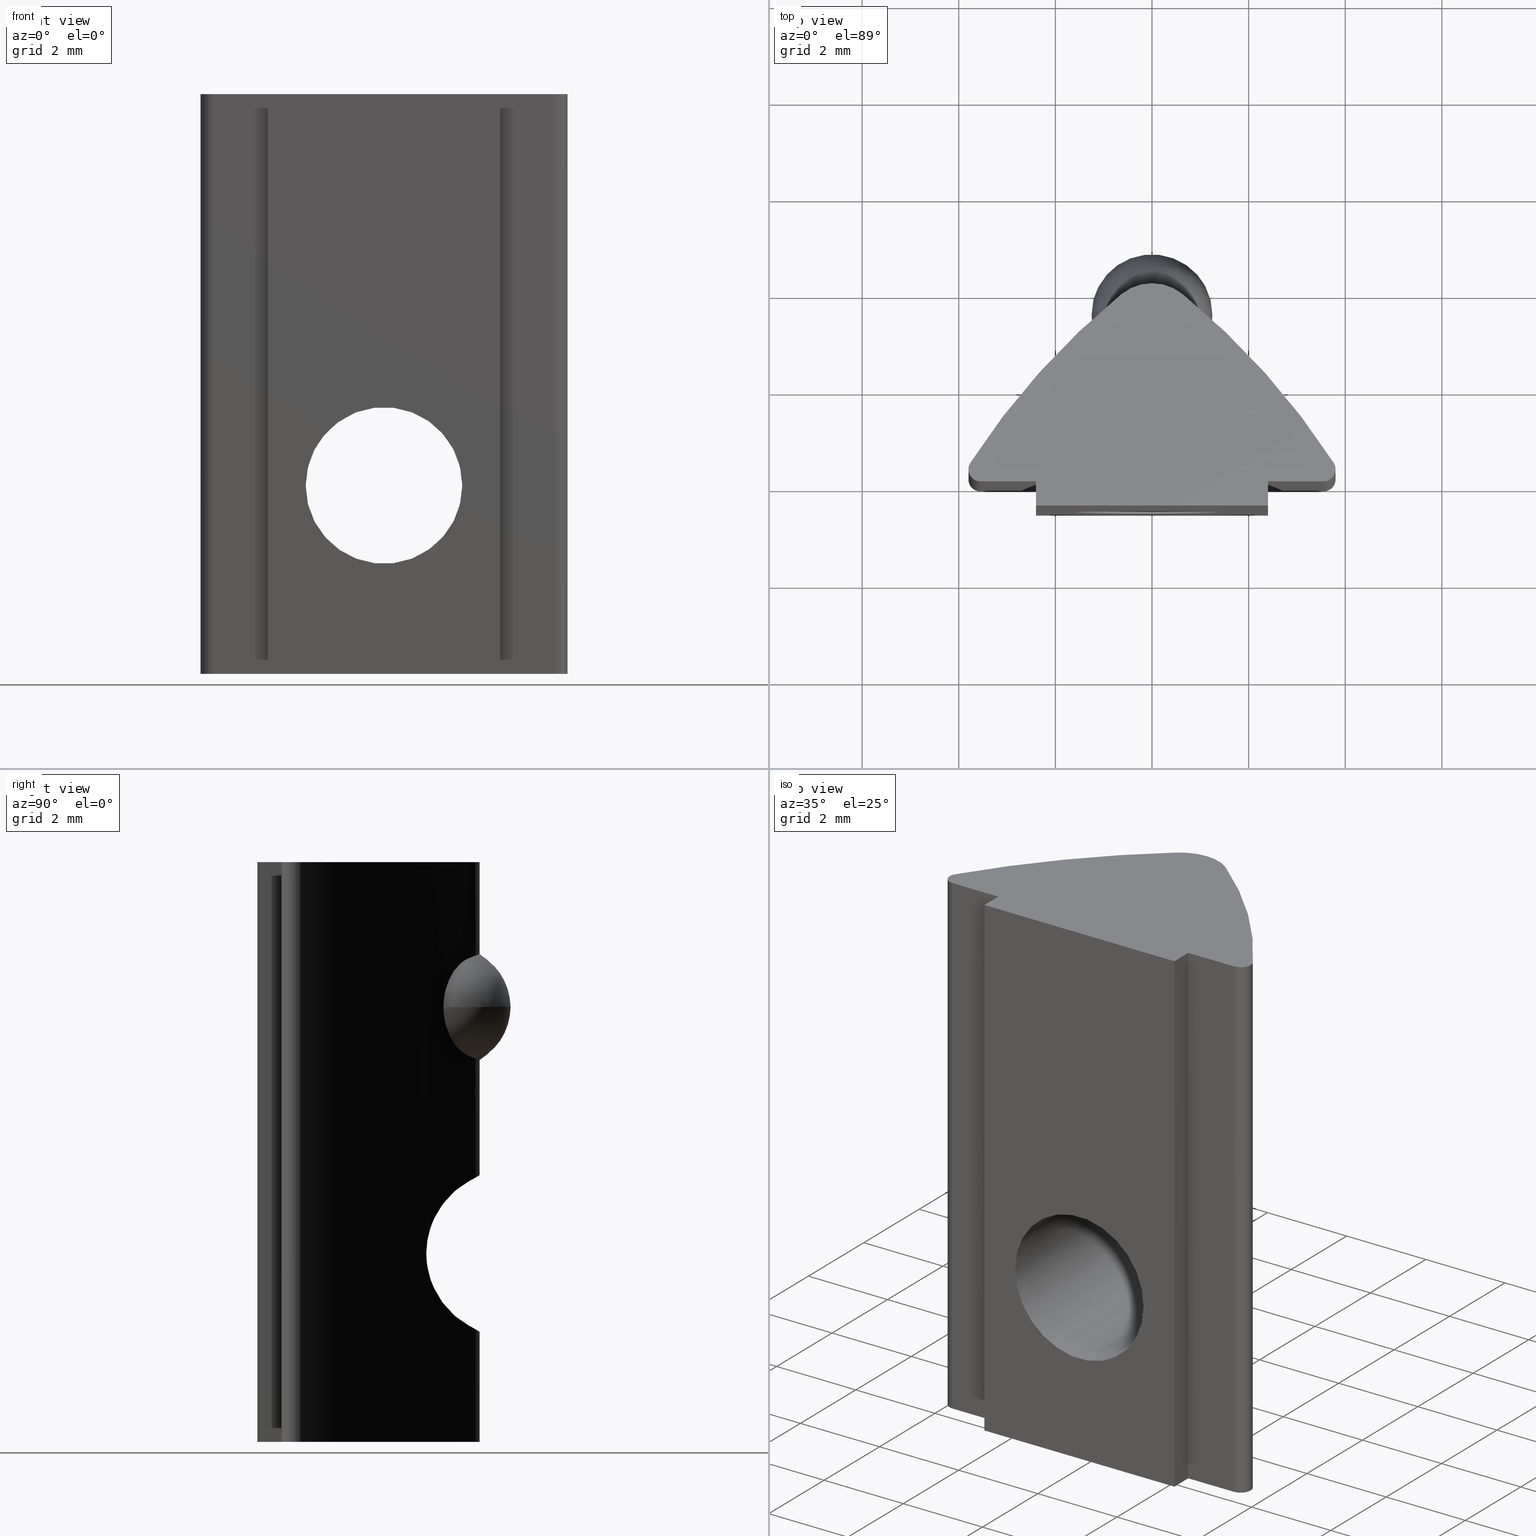
[diagram: canonical four-view strip — front | top / right | iso, engineering-drawing reading convention]
A machine part, canonical four-view strip (front | top / right | iso — engineering-drawing reading convention). The complete STEP part file that produces these views, byte-faithful:
ISO-10303-21;
HEADER;
/* Generated by software containing ST-Developer
 * from STEP Tools, Inc. (www.steptools.com) 
 */

FILE_DESCRIPTION(
/* description */ ('CURSORE ZINC. A CULLA M4 CAVA 5'),
/* implementation_level */ '2;1');

FILE_NAME(
/* name */ 
'C:\\Users\\tecnico7\\Desktop\\tavole temporanee\\CDDCU0000059.stp',
/* time_stamp */ '2022-11-16T15:43:52+01:00',
/* author */ ('tecnico7'),
/* organization */ (''),
/* preprocessor_version */ 'ST-DEVELOPER v18.1',
/* originating_system */ 'Autodesk Inventor 2022',
/* authorisation */ '');

FILE_SCHEMA (('AUTOMOTIVE_DESIGN { 1 0 10303 214 3 1 1 }'));
ENDSEC;

DATA;
#10=MECHANICAL_DESIGN_GEOMETRIC_PRESENTATION_REPRESENTATION('',(#317,#318),
#688);
#11=SHAPE_REPRESENTATION_RELATIONSHIP('SRR','None',#695,#12);
#12=ADVANCED_BREP_SHAPE_REPRESENTATION('',(#13),#687);
#13=MANIFOLD_SOLID_BREP('Solido1',#335);
#14=PLANE('',#373);
#15=PLANE('',#374);
#16=PLANE('',#375);
#17=PLANE('',#376);
#18=PLANE('',#377);
#19=PLANE('',#384);
#20=PLANE('',#385);
#21=LINE('',#545,#46);
#22=LINE('',#567,#47);
#23=LINE('',#571,#48);
#24=LINE('',#574,#49);
#25=LINE('',#577,#50);
#26=LINE('',#604,#51);
#27=LINE('',#632,#52);
#28=LINE('',#636,#53);
#29=LINE('',#639,#54);
#30=LINE('',#647,#55);
#31=LINE('',#649,#56);
#32=LINE('',#651,#57);
#33=LINE('',#652,#58);
#34=LINE('',#655,#59);
#35=LINE('',#657,#60);
#36=LINE('',#658,#61);
#37=LINE('',#661,#62);
#38=LINE('',#663,#63);
#39=LINE('',#664,#64);
#40=LINE('',#667,#65);
#41=LINE('',#669,#66);
#42=LINE('',#670,#67);
#43=LINE('',#673,#68);
#44=LINE('',#675,#69);
#45=LINE('',#676,#70);
#46=VECTOR('',#394,10.);
#47=VECTOR('',#395,10.);
#48=VECTOR('',#398,10.);
#49=VECTOR('',#401,10.);
#50=VECTOR('',#404,10.);
#51=VECTOR('',#407,1.621);
#52=VECTOR('',#412,10.);
#53=VECTOR('',#415,10.);
#54=VECTOR('',#418,10.);
#55=VECTOR('',#429,10.);
#56=VECTOR('',#430,10.);
#57=VECTOR('',#431,10.);
#58=VECTOR('',#432,10.);
#59=VECTOR('',#435,10.);
#60=VECTOR('',#436,10.);
#61=VECTOR('',#437,10.);
#62=VECTOR('',#440,10.);
#63=VECTOR('',#441,10.);
#64=VECTOR('',#442,10.);
#65=VECTOR('',#445,10.);
#66=VECTOR('',#446,10.);
#67=VECTOR('',#447,10.);
#68=VECTOR('',#450,10.);
#69=VECTOR('',#451,10.);
#70=VECTOR('',#452,10.);
#71=CYLINDRICAL_SURFACE('',#360,15.);
#72=CYLINDRICAL_SURFACE('',#363,1.);
#73=CYLINDRICAL_SURFACE('',#364,1.621);
#74=CYLINDRICAL_SURFACE('',#366,15.);
#75=CYLINDRICAL_SURFACE('',#369,1.);
#76=CYLINDRICAL_SURFACE('',#371,1.);
#77=CYLINDRICAL_SURFACE('',#378,0.25);
#78=CYLINDRICAL_SURFACE('',#381,0.25);
#79=FACE_BOUND('',#109,.T.);
#80=FACE_BOUND('',#119,.T.);
#81=B_SPLINE_CURVE_WITH_KNOTS('',3,(#476,#477,#478,#479,#480,#481,#482,
#483,#484,#485,#486,#487,#488,#489,#490,#491,#492,#493),.UNSPECIFIED.,.F.,
 .F.,(4,2,2,2,2,2,2,2,4),(0.182968456243765,0.210851468543244,0.243239566367713,
0.279251537174953,0.315263507982192,0.351275478789432,0.387287449596671,
0.41967554742114,0.447558559720619),.UNSPECIFIED.);
#82=B_SPLINE_CURVE_WITH_KNOTS('',3,(#495,#496,#497,#498,#499,#500,#501,
#502,#503,#504,#505,#506,#507,#508),.UNSPECIFIED.,.F.,.F.,(4,2,2,2,2,2,
4),(0.177323095739884,0.193497467225048,0.218225435560753,0.242953403896458,
0.267681372232164,0.292409340567869,0.308583712053033),.UNSPECIFIED.);
#83=B_SPLINE_CURVE_WITH_KNOTS('',3,(#510,#511,#512,#513,#514,#515,#516,
#517,#518,#519,#520,#521,#522,#523,#524,#525,#526,#527,#528),
 .UNSPECIFIED.,.F.,.F.,(4,2,2,2,3,2,2,2,4),(-0.132295051738427,-0.104412039438947,
-0.0720239416144781,-0.0360119708072391,0.,0.036011970807239,0.0720239416144781,
0.104412039438947,0.132295051738427),.UNSPECIFIED.);
#84=B_SPLINE_CURVE_WITH_KNOTS('',3,(#529,#530,#531,#532,#533,#534,#535,
#536,#537,#538,#539,#540,#541,#542),.UNSPECIFIED.,.F.,.F.,(4,2,2,2,2,2,
4),(0.6632299035328,0.679404275017964,0.704132243353669,0.728860211689375,
0.75358818002508,0.778316148360785,0.794490519845949),.UNSPECIFIED.);
#85=B_SPLINE_CURVE_WITH_KNOTS('',3,(#547,#548,#549,#550,#551,#552,#553,
#554,#555,#556,#557,#558,#559,#560,#561,#562,#563,#564,#565),
 .UNSPECIFIED.,.F.,.F.,(4,2,2,2,3,2,2,2,4),(-0.204897158190466,-0.202354565834305,
-0.122452070148037,-0.0612260350740186,0.,0.0612260350740184,0.122452070148037,
0.202354565834305,0.204897158190465),.UNSPECIFIED.);
#86=B_SPLINE_CURVE_WITH_KNOTS('',3,(#579,#580,#581,#582,#583,#584),
 .UNSPECIFIED.,.F.,.F.,(4,2,4),(0.0887988994654548,0.116987272487438,0.155790089731869),
 .UNSPECIFIED.);
#87=B_SPLINE_CURVE_WITH_KNOTS('',3,(#585,#586,#587,#588,#589,#590),
 .UNSPECIFIED.,.F.,.F.,(4,2,4),(0.155790089731869,0.1945929069763,0.222781279998283),
 .UNSPECIFIED.);
#88=B_SPLINE_CURVE_WITH_KNOTS('',3,(#593,#594,#595,#596,#597,#598,#599,
#600,#601,#602),.UNSPECIFIED.,.F.,.F.,(4,2,2,2,4),(0.550486779478098,0.611712814552116,
0.672938849626135,0.752841345312403,0.755383937668563),.UNSPECIFIED.);
#89=B_SPLINE_CURVE_WITH_KNOTS('',3,(#607,#608,#609,#610,#611,#612,#613,
#614,#615,#616),.UNSPECIFIED.,.F.,.F.,(4,2,2,2,4),(0.345589621287633,0.348132213643793,
0.428034709330061,0.48926074440408,0.550486779478098),.UNSPECIFIED.);
#90=B_SPLINE_CURVE_WITH_KNOTS('',3,(#618,#619,#620,#621,#622,#623),
 .UNSPECIFIED.,.F.,.F.,(4,2,4),(0.467370269195606,0.506173086440038,0.53436145946202),
 .UNSPECIFIED.);
#91=B_SPLINE_CURVE_WITH_KNOTS('',3,(#624,#625,#626,#627,#628,#629),
 .UNSPECIFIED.,.F.,.F.,(4,2,4),(0.400379078929193,0.428567451951175,0.467370269195606),
 .UNSPECIFIED.);
#92=FACE_OUTER_BOUND('',#108,.T.);
#93=FACE_OUTER_BOUND('',#110,.T.);
#94=FACE_OUTER_BOUND('',#111,.T.);
#95=FACE_OUTER_BOUND('',#112,.T.);
#96=FACE_OUTER_BOUND('',#113,.T.);
#97=FACE_OUTER_BOUND('',#114,.T.);
#98=FACE_OUTER_BOUND('',#115,.T.);
#99=FACE_OUTER_BOUND('',#116,.T.);
#100=FACE_OUTER_BOUND('',#117,.T.);
#101=FACE_OUTER_BOUND('',#118,.T.);
#102=FACE_OUTER_BOUND('',#120,.T.);
#103=FACE_OUTER_BOUND('',#121,.T.);
#104=FACE_OUTER_BOUND('',#122,.T.);
#105=FACE_OUTER_BOUND('',#123,.T.);
#106=FACE_OUTER_BOUND('',#124,.T.);
#107=FACE_OUTER_BOUND('',#125,.T.);
#108=EDGE_LOOP('',(#220,#221));
#109=EDGE_LOOP('',(#222,#223,#224,#225));
#110=EDGE_LOOP('',(#226,#227,#228,#229,#230,#231,#232,#233));
#111=EDGE_LOOP('',(#234,#235,#236,#237,#238));
#112=EDGE_LOOP('',(#239,#240,#241,#242,#243,#244,#245,#246,#247,#248));
#113=EDGE_LOOP('',(#249,#250,#251,#252,#253,#254,#255,#256,#257));
#114=EDGE_LOOP('',(#258,#259,#260,#261));
#115=EDGE_LOOP('',(#262,#263,#264,#265,#266));
#116=EDGE_LOOP('',(#267,#268,#269,#270));
#117=EDGE_LOOP('',(#271,#272,#273,#274));
#118=EDGE_LOOP('',(#275,#276,#277,#278));
#119=EDGE_LOOP('',(#279));
#120=EDGE_LOOP('',(#280,#281,#282,#283));
#121=EDGE_LOOP('',(#284,#285,#286,#287));
#122=EDGE_LOOP('',(#288,#289,#290,#291));
#123=EDGE_LOOP('',(#292,#293,#294,#295));
#124=EDGE_LOOP('',(#296,#297,#298,#299,#300,#301,#302,#303,#304,#305));
#125=EDGE_LOOP('',(#306,#307,#308,#309,#310,#311,#312,#313,#314,#315));
#126=CIRCLE('',#359,1.25);
#127=CIRCLE('',#361,15.);
#128=CIRCLE('',#362,15.);
#129=CIRCLE('',#365,1.621);
#130=CIRCLE('',#367,15.);
#131=CIRCLE('',#368,15.);
#132=CIRCLE('',#370,1.);
#133=CIRCLE('',#372,1.);
#134=CIRCLE('',#379,0.25);
#135=CIRCLE('',#380,0.25);
#136=CIRCLE('',#382,0.25);
#137=CIRCLE('',#383,0.25);
#138=VERTEX_POINT('',#471);
#139=VERTEX_POINT('',#472);
#140=VERTEX_POINT('',#474);
#141=VERTEX_POINT('',#475);
#142=VERTEX_POINT('',#494);
#143=VERTEX_POINT('',#509);
#144=VERTEX_POINT('',#544);
#145=VERTEX_POINT('',#546);
#146=VERTEX_POINT('',#566);
#147=VERTEX_POINT('',#568);
#148=VERTEX_POINT('',#570);
#149=VERTEX_POINT('',#572);
#150=VERTEX_POINT('',#576);
#151=VERTEX_POINT('',#578);
#152=VERTEX_POINT('',#592);
#153=VERTEX_POINT('',#603);
#154=VERTEX_POINT('',#606);
#155=VERTEX_POINT('',#617);
#156=VERTEX_POINT('',#631);
#157=VERTEX_POINT('',#633);
#158=VERTEX_POINT('',#635);
#159=VERTEX_POINT('',#637);
#160=VERTEX_POINT('',#645);
#161=VERTEX_POINT('',#646);
#162=VERTEX_POINT('',#648);
#163=VERTEX_POINT('',#650);
#164=VERTEX_POINT('',#654);
#165=VERTEX_POINT('',#656);
#166=VERTEX_POINT('',#660);
#167=VERTEX_POINT('',#662);
#168=VERTEX_POINT('',#666);
#169=VERTEX_POINT('',#668);
#170=VERTEX_POINT('',#672);
#171=VERTEX_POINT('',#674);
#172=EDGE_CURVE('',#138,#139,#126,.T.);
#173=EDGE_CURVE('',#140,#141,#81,.T.);
#174=EDGE_CURVE('',#142,#140,#82,.T.);
#175=EDGE_CURVE('',#143,#142,#83,.T.);
#176=EDGE_CURVE('',#141,#143,#84,.T.);
#177=EDGE_CURVE('',#144,#142,#21,.T.);
#178=EDGE_CURVE('',#144,#145,#85,.T.);
#179=EDGE_CURVE('',#146,#145,#22,.T.);
#180=EDGE_CURVE('',#147,#146,#127,.T.);
#181=EDGE_CURVE('',#147,#148,#23,.T.);
#182=EDGE_CURVE('',#149,#148,#128,.T.);
#183=EDGE_CURVE('',#143,#149,#24,.T.);
#184=EDGE_CURVE('',#150,#140,#25,.T.);
#185=EDGE_CURVE('',#150,#151,#86,.T.);
#186=EDGE_CURVE('',#151,#144,#87,.T.);
#187=EDGE_CURVE('',#152,#150,#88,.T.);
#188=EDGE_CURVE('',#152,#153,#26,.T.);
#189=EDGE_CURVE('',#153,#153,#129,.T.);
#190=EDGE_CURVE('',#154,#152,#89,.T.);
#191=EDGE_CURVE('',#155,#154,#90,.T.);
#192=EDGE_CURVE('',#145,#155,#91,.T.);
#193=EDGE_CURVE('',#141,#156,#27,.T.);
#194=EDGE_CURVE('',#157,#156,#130,.T.);
#195=EDGE_CURVE('',#158,#157,#28,.T.);
#196=EDGE_CURVE('',#159,#158,#131,.T.);
#197=EDGE_CURVE('',#159,#154,#29,.T.);
#198=EDGE_CURVE('',#156,#149,#132,.T.);
#199=EDGE_CURVE('',#146,#159,#133,.T.);
#200=EDGE_CURVE('',#160,#161,#30,.T.);
#201=EDGE_CURVE('',#160,#162,#31,.T.);
#202=EDGE_CURVE('',#163,#162,#32,.T.);
#203=EDGE_CURVE('',#161,#163,#33,.T.);
#204=EDGE_CURVE('',#161,#164,#34,.T.);
#205=EDGE_CURVE('',#165,#163,#35,.T.);
#206=EDGE_CURVE('',#164,#165,#36,.T.);
#207=EDGE_CURVE('',#164,#166,#37,.T.);
#208=EDGE_CURVE('',#167,#165,#38,.T.);
#209=EDGE_CURVE('',#166,#167,#39,.T.);
#210=EDGE_CURVE('',#166,#168,#40,.T.);
#211=EDGE_CURVE('',#169,#167,#41,.T.);
#212=EDGE_CURVE('',#168,#169,#42,.T.);
#213=EDGE_CURVE('',#168,#170,#43,.T.);
#214=EDGE_CURVE('',#171,#169,#44,.T.);
#215=EDGE_CURVE('',#170,#171,#45,.T.);
#216=EDGE_CURVE('',#170,#147,#134,.T.);
#217=EDGE_CURVE('',#148,#171,#135,.T.);
#218=EDGE_CURVE('',#158,#160,#136,.T.);
#219=EDGE_CURVE('',#162,#157,#137,.T.);
#220=ORIENTED_EDGE('',*,*,#172,.T.);
#221=ORIENTED_EDGE('',*,*,#172,.F.);
#222=ORIENTED_EDGE('',*,*,#173,.F.);
#223=ORIENTED_EDGE('',*,*,#174,.F.);
#224=ORIENTED_EDGE('',*,*,#175,.F.);
#225=ORIENTED_EDGE('',*,*,#176,.F.);
#226=ORIENTED_EDGE('',*,*,#175,.T.);
#227=ORIENTED_EDGE('',*,*,#177,.F.);
#228=ORIENTED_EDGE('',*,*,#178,.T.);
#229=ORIENTED_EDGE('',*,*,#179,.F.);
#230=ORIENTED_EDGE('',*,*,#180,.F.);
#231=ORIENTED_EDGE('',*,*,#181,.T.);
#232=ORIENTED_EDGE('',*,*,#182,.F.);
#233=ORIENTED_EDGE('',*,*,#183,.F.);
#234=ORIENTED_EDGE('',*,*,#174,.T.);
#235=ORIENTED_EDGE('',*,*,#184,.F.);
#236=ORIENTED_EDGE('',*,*,#185,.T.);
#237=ORIENTED_EDGE('',*,*,#186,.T.);
#238=ORIENTED_EDGE('',*,*,#177,.T.);
#239=ORIENTED_EDGE('',*,*,#186,.F.);
#240=ORIENTED_EDGE('',*,*,#185,.F.);
#241=ORIENTED_EDGE('',*,*,#187,.F.);
#242=ORIENTED_EDGE('',*,*,#188,.T.);
#243=ORIENTED_EDGE('',*,*,#189,.F.);
#244=ORIENTED_EDGE('',*,*,#188,.F.);
#245=ORIENTED_EDGE('',*,*,#190,.F.);
#246=ORIENTED_EDGE('',*,*,#191,.F.);
#247=ORIENTED_EDGE('',*,*,#192,.F.);
#248=ORIENTED_EDGE('',*,*,#178,.F.);
#249=ORIENTED_EDGE('',*,*,#173,.T.);
#250=ORIENTED_EDGE('',*,*,#193,.T.);
#251=ORIENTED_EDGE('',*,*,#194,.F.);
#252=ORIENTED_EDGE('',*,*,#195,.F.);
#253=ORIENTED_EDGE('',*,*,#196,.F.);
#254=ORIENTED_EDGE('',*,*,#197,.T.);
#255=ORIENTED_EDGE('',*,*,#190,.T.);
#256=ORIENTED_EDGE('',*,*,#187,.T.);
#257=ORIENTED_EDGE('',*,*,#184,.T.);
#258=ORIENTED_EDGE('',*,*,#176,.T.);
#259=ORIENTED_EDGE('',*,*,#183,.T.);
#260=ORIENTED_EDGE('',*,*,#198,.F.);
#261=ORIENTED_EDGE('',*,*,#193,.F.);
#262=ORIENTED_EDGE('',*,*,#192,.T.);
#263=ORIENTED_EDGE('',*,*,#191,.T.);
#264=ORIENTED_EDGE('',*,*,#197,.F.);
#265=ORIENTED_EDGE('',*,*,#199,.F.);
#266=ORIENTED_EDGE('',*,*,#179,.T.);
#267=ORIENTED_EDGE('',*,*,#200,.F.);
#268=ORIENTED_EDGE('',*,*,#201,.T.);
#269=ORIENTED_EDGE('',*,*,#202,.F.);
#270=ORIENTED_EDGE('',*,*,#203,.F.);
#271=ORIENTED_EDGE('',*,*,#204,.F.);
#272=ORIENTED_EDGE('',*,*,#203,.T.);
#273=ORIENTED_EDGE('',*,*,#205,.F.);
#274=ORIENTED_EDGE('',*,*,#206,.F.);
#275=ORIENTED_EDGE('',*,*,#207,.F.);
#276=ORIENTED_EDGE('',*,*,#206,.T.);
#277=ORIENTED_EDGE('',*,*,#208,.F.);
#278=ORIENTED_EDGE('',*,*,#209,.F.);
#279=ORIENTED_EDGE('',*,*,#189,.T.);
#280=ORIENTED_EDGE('',*,*,#210,.F.);
#281=ORIENTED_EDGE('',*,*,#209,.T.);
#282=ORIENTED_EDGE('',*,*,#211,.F.);
#283=ORIENTED_EDGE('',*,*,#212,.F.);
#284=ORIENTED_EDGE('',*,*,#213,.F.);
#285=ORIENTED_EDGE('',*,*,#212,.T.);
#286=ORIENTED_EDGE('',*,*,#214,.F.);
#287=ORIENTED_EDGE('',*,*,#215,.F.);
#288=ORIENTED_EDGE('',*,*,#216,.F.);
#289=ORIENTED_EDGE('',*,*,#215,.T.);
#290=ORIENTED_EDGE('',*,*,#217,.F.);
#291=ORIENTED_EDGE('',*,*,#181,.F.);
#292=ORIENTED_EDGE('',*,*,#218,.F.);
#293=ORIENTED_EDGE('',*,*,#195,.T.);
#294=ORIENTED_EDGE('',*,*,#219,.F.);
#295=ORIENTED_EDGE('',*,*,#201,.F.);
#296=ORIENTED_EDGE('',*,*,#218,.T.);
#297=ORIENTED_EDGE('',*,*,#200,.T.);
#298=ORIENTED_EDGE('',*,*,#204,.T.);
#299=ORIENTED_EDGE('',*,*,#207,.T.);
#300=ORIENTED_EDGE('',*,*,#210,.T.);
#301=ORIENTED_EDGE('',*,*,#213,.T.);
#302=ORIENTED_EDGE('',*,*,#216,.T.);
#303=ORIENTED_EDGE('',*,*,#180,.T.);
#304=ORIENTED_EDGE('',*,*,#199,.T.);
#305=ORIENTED_EDGE('',*,*,#196,.T.);
#306=ORIENTED_EDGE('',*,*,#219,.T.);
#307=ORIENTED_EDGE('',*,*,#194,.T.);
#308=ORIENTED_EDGE('',*,*,#198,.T.);
#309=ORIENTED_EDGE('',*,*,#182,.T.);
#310=ORIENTED_EDGE('',*,*,#217,.T.);
#311=ORIENTED_EDGE('',*,*,#214,.T.);
#312=ORIENTED_EDGE('',*,*,#211,.T.);
#313=ORIENTED_EDGE('',*,*,#208,.T.);
#314=ORIENTED_EDGE('',*,*,#205,.T.);
#315=ORIENTED_EDGE('',*,*,#202,.T.);
#316=SPHERICAL_SURFACE('',#358,1.25);
#317=STYLED_ITEM('',(#705),#319);
#318=STYLED_ITEM('',(#704),#13);
#319=ADVANCED_FACE('',(#92,#79),#316,.T.);
#320=ADVANCED_FACE('',(#93),#71,.T.);
#321=ADVANCED_FACE('',(#94),#72,.T.);
#322=ADVANCED_FACE('',(#95),#73,.F.);
#323=ADVANCED_FACE('',(#96),#74,.T.);
#324=ADVANCED_FACE('',(#97),#75,.T.);
#325=ADVANCED_FACE('',(#98),#76,.T.);
#326=ADVANCED_FACE('',(#99),#14,.T.);
#327=ADVANCED_FACE('',(#100),#15,.T.);
#328=ADVANCED_FACE('',(#101,#80),#16,.T.);
#329=ADVANCED_FACE('',(#102),#17,.T.);
#330=ADVANCED_FACE('',(#103),#18,.T.);
#331=ADVANCED_FACE('',(#104),#77,.T.);
#332=ADVANCED_FACE('',(#105),#78,.T.);
#333=ADVANCED_FACE('',(#106),#19,.F.);
#334=ADVANCED_FACE('',(#107),#20,.T.);
#335=CLOSED_SHELL('',(#319,#320,#321,#322,#323,#324,#325,#326,#327,#328,
#329,#330,#331,#332,#333,#334));
#336=DERIVED_UNIT_ELEMENT(#339,1.);
#337=DERIVED_UNIT_ELEMENT(#690,-3.);
#338=DIMENSIONAL_EXPONENTS(1.,0.,0.,0.,0.,0.,0.);
#339=(
CONVERSION_BASED_UNIT('gram',#341)
MASS_UNIT()
NAMED_UNIT(#338)
);
#340=(
MASS_UNIT()
NAMED_UNIT(*)
SI_UNIT(.KILO.,.GRAM.)
);
#341=MASS_MEASURE_WITH_UNIT(MASS_MEASURE(0.001),#340);
#342=DERIVED_UNIT((#336,#337));
#343=MEASURE_REPRESENTATION_ITEM('density measure',
POSITIVE_RATIO_MEASURE(7.87),#342);
#344=PROPERTY_DEFINITION_REPRESENTATION(#349,#346);
#345=PROPERTY_DEFINITION_REPRESENTATION(#350,#347);
#346=REPRESENTATION('material name',(#348),#687);
#347=REPRESENTATION('density',(#343),#687);
#348=DESCRIPTIVE_REPRESENTATION_ITEM('Acciaio 1 C40','Acciaio 1 C40');
#349=PROPERTY_DEFINITION('material property','material name',#697);
#350=PROPERTY_DEFINITION('material property','density of part',#697);
#351=DATE_TIME_ROLE('creation_date');
#352=APPLIED_DATE_AND_TIME_ASSIGNMENT(#353,#351,(#697));
#353=DATE_AND_TIME(#354,#355);
#354=CALENDAR_DATE(2017,18,7);
#355=LOCAL_TIME(0,0,0.,#356);
#356=COORDINATED_UNIVERSAL_TIME_OFFSET(0,0,.BEHIND.);
#357=AXIS2_PLACEMENT_3D('placement',#469,#386,#387);
#358=AXIS2_PLACEMENT_3D('',#470,#388,#389);
#359=AXIS2_PLACEMENT_3D('',#473,#390,#391);
#360=AXIS2_PLACEMENT_3D('',#543,#392,#393);
#361=AXIS2_PLACEMENT_3D('',#569,#396,#397);
#362=AXIS2_PLACEMENT_3D('',#573,#399,#400);
#363=AXIS2_PLACEMENT_3D('',#575,#402,#403);
#364=AXIS2_PLACEMENT_3D('',#591,#405,#406);
#365=AXIS2_PLACEMENT_3D('',#605,#408,#409);
#366=AXIS2_PLACEMENT_3D('',#630,#410,#411);
#367=AXIS2_PLACEMENT_3D('',#634,#413,#414);
#368=AXIS2_PLACEMENT_3D('',#638,#416,#417);
#369=AXIS2_PLACEMENT_3D('',#640,#419,#420);
#370=AXIS2_PLACEMENT_3D('',#641,#421,#422);
#371=AXIS2_PLACEMENT_3D('',#642,#423,#424);
#372=AXIS2_PLACEMENT_3D('',#643,#425,#426);
#373=AXIS2_PLACEMENT_3D('',#644,#427,#428);
#374=AXIS2_PLACEMENT_3D('',#653,#433,#434);
#375=AXIS2_PLACEMENT_3D('',#659,#438,#439);
#376=AXIS2_PLACEMENT_3D('',#665,#443,#444);
#377=AXIS2_PLACEMENT_3D('',#671,#448,#449);
#378=AXIS2_PLACEMENT_3D('',#677,#453,#454);
#379=AXIS2_PLACEMENT_3D('',#678,#455,#456);
#380=AXIS2_PLACEMENT_3D('',#679,#457,#458);
#381=AXIS2_PLACEMENT_3D('',#680,#459,#460);
#382=AXIS2_PLACEMENT_3D('',#681,#461,#462);
#383=AXIS2_PLACEMENT_3D('',#682,#463,#464);
#384=AXIS2_PLACEMENT_3D('',#683,#465,#466);
#385=AXIS2_PLACEMENT_3D('',#684,#467,#468);
#386=DIRECTION('axis',(0.,0.,1.));
#387=DIRECTION('refdir',(1.,0.,0.));
#388=DIRECTION('center_axis',(1.,0.,0.));
#389=DIRECTION('ref_axis',(0.,-1.,0.));
#390=DIRECTION('center_axis',(0.,0.,1.));
#391=DIRECTION('ref_axis',(0.,1.,0.));
#392=DIRECTION('center_axis',(0.,0.,1.));
#393=DIRECTION('ref_axis',(0.63114343940598,-0.775666138808953,0.));
#394=DIRECTION('',(0.,0.,1.));
#395=DIRECTION('',(0.,0.,1.));
#396=DIRECTION('center_axis',(0.,0.,-1.));
#397=DIRECTION('ref_axis',(0.63114343940598,-0.775666138808953,0.));
#398=DIRECTION('',(0.,0.,1.));
#399=DIRECTION('center_axis',(0.,0.,1.));
#400=DIRECTION('ref_axis',(0.63114343940598,-0.775666138808953,0.));
#401=DIRECTION('',(0.,0.,1.));
#402=DIRECTION('center_axis',(0.,0.,1.));
#403=DIRECTION('ref_axis',(-0.63114343940598,-0.775666138808953,0.));
#404=DIRECTION('',(0.,0.,1.));
#405=DIRECTION('center_axis',(0.,1.,0.));
#406=DIRECTION('ref_axis',(-1.,0.,0.));
#407=DIRECTION('',(0.,-1.,0.));
#408=DIRECTION('center_axis',(0.,1.,0.));
#409=DIRECTION('ref_axis',(-1.,0.,0.));
#410=DIRECTION('center_axis',(0.,0.,1.));
#411=DIRECTION('ref_axis',(-0.839729366215846,-0.543005148700023,0.));
#412=DIRECTION('',(0.,0.,1.));
#413=DIRECTION('center_axis',(0.,0.,1.));
#414=DIRECTION('ref_axis',(-0.839729366215846,-0.543005148700023,0.));
#415=DIRECTION('',(0.,0.,1.));
#416=DIRECTION('center_axis',(0.,0.,-1.));
#417=DIRECTION('ref_axis',(-0.839729366215846,-0.543005148700023,0.));
#418=DIRECTION('',(0.,0.,1.));
#419=DIRECTION('center_axis',(0.,0.,1.));
#420=DIRECTION('ref_axis',(-0.63114343940598,-0.775666138808953,0.));
#421=DIRECTION('center_axis',(0.,0.,1.));
#422=DIRECTION('ref_axis',(-0.63114343940598,-0.775666138808953,0.));
#423=DIRECTION('center_axis',(0.,0.,1.));
#424=DIRECTION('ref_axis',(-0.63114343940598,-0.775666138808953,0.));
#425=DIRECTION('center_axis',(0.,0.,-1.));
#426=DIRECTION('ref_axis',(-0.63114343940598,-0.775666138808953,0.));
#427=DIRECTION('center_axis',(6.69888676308604E-33,-1.,0.));
#428=DIRECTION('ref_axis',(1.,6.69888676308604E-33,0.));
#429=DIRECTION('',(-1.,-6.69888676308604E-33,0.));
#430=DIRECTION('',(0.,0.,1.));
#431=DIRECTION('',(1.,6.69888676308604E-33,0.));
#432=DIRECTION('',(0.,0.,1.));
#433=DIRECTION('center_axis',(1.,0.,0.));
#434=DIRECTION('ref_axis',(0.,1.,0.));
#435=DIRECTION('',(0.,-1.,0.));
#436=DIRECTION('',(0.,1.,0.));
#437=DIRECTION('',(0.,0.,1.));
#438=DIRECTION('center_axis',(0.,-1.,0.));
#439=DIRECTION('ref_axis',(1.,0.,0.));
#440=DIRECTION('',(-1.,0.,0.));
#441=DIRECTION('',(1.,0.,0.));
#442=DIRECTION('',(0.,0.,1.));
#443=DIRECTION('center_axis',(-1.,0.,0.));
#444=DIRECTION('ref_axis',(0.,-1.,0.));
#445=DIRECTION('',(0.,1.,0.));
#446=DIRECTION('',(0.,-1.,0.));
#447=DIRECTION('',(0.,0.,1.));
#448=DIRECTION('center_axis',(0.,-1.,0.));
#449=DIRECTION('ref_axis',(1.,0.,0.));
#450=DIRECTION('',(-1.,0.,0.));
#451=DIRECTION('',(1.,0.,0.));
#452=DIRECTION('',(0.,0.,1.));
#453=DIRECTION('center_axis',(0.,0.,1.));
#454=DIRECTION('ref_axis',(0.839729366215846,-0.543005148700022,0.));
#455=DIRECTION('center_axis',(0.,0.,-1.));
#456=DIRECTION('ref_axis',(0.839729366215846,-0.543005148700022,0.));
#457=DIRECTION('center_axis',(0.,0.,1.));
#458=DIRECTION('ref_axis',(0.839729366215846,-0.543005148700022,0.));
#459=DIRECTION('center_axis',(0.,0.,1.));
#460=DIRECTION('ref_axis',(0.,1.,0.));
#461=DIRECTION('center_axis',(0.,0.,-1.));
#462=DIRECTION('ref_axis',(0.,1.,0.));
#463=DIRECTION('center_axis',(0.,0.,1.));
#464=DIRECTION('ref_axis',(0.,1.,0.));
#465=DIRECTION('center_axis',(0.,0.,1.));
#466=DIRECTION('ref_axis',(1.,0.,0.));
#467=DIRECTION('center_axis',(0.,0.,1.));
#468=DIRECTION('ref_axis',(1.,0.,0.));
#469=CARTESIAN_POINT('',(0.,0.,0.));
#470=CARTESIAN_POINT('Origin',(0.,3.5,9.));
#471=CARTESIAN_POINT('',(1.25,3.5,9.));
#472=CARTESIAN_POINT('',(-1.25,3.5,9.));
#473=CARTESIAN_POINT('Origin',(0.,3.5,9.));
#474=CARTESIAN_POINT('',(0.631143439405981,3.87566613880895,7.98854910596354));
#475=CARTESIAN_POINT('',(0.631143439405981,3.87566613880895,10.0114508940365));
#476=CARTESIAN_POINT('Ctrl Pts',(0.631143439405981,3.87566613880895,7.98854910596354));
#477=CARTESIAN_POINT('Ctrl Pts',(0.706906064844613,3.81401966282485,8.0129285301541));
#478=CARTESIAN_POINT('Ctrl Pts',(0.779525979046031,3.75362472286554,8.05176362716048));
#479=CARTESIAN_POINT('Ctrl Pts',(0.912982315815267,3.64093699186633,8.15102680410987));
#480=CARTESIAN_POINT('Ctrl Pts',(0.989434669996827,3.57495232534953,8.23217409867822));
#481=CARTESIAN_POINT('Ctrl Pts',(1.10392184773954,3.47473870952647,8.40197993384423));
#482=CARTESIAN_POINT('Ctrl Pts',(1.15588616264958,3.42835364541138,8.51245620052577));
#483=CARTESIAN_POINT('Ctrl Pts',(1.22448257068173,3.36670895791017,8.75144234123317));
#484=CARTESIAN_POINT('Ctrl Pts',(1.24115006546628,3.3515193110433,8.8799600973092));
#485=CARTESIAN_POINT('Ctrl Pts',(1.24115006546628,3.3515193110433,9.1200399026908));
#486=CARTESIAN_POINT('Ctrl Pts',(1.22448257068173,3.36670895791017,9.24855765876683));
#487=CARTESIAN_POINT('Ctrl Pts',(1.15588616264958,3.42835364541138,9.48754379947423));
#488=CARTESIAN_POINT('Ctrl Pts',(1.10392184773954,3.47473870952647,9.59802006615577));
#489=CARTESIAN_POINT('Ctrl Pts',(0.989434669996827,3.57495232534953,9.76782590132178));
#490=CARTESIAN_POINT('Ctrl Pts',(0.912982315815267,3.64093699186633,9.84897319589013));
#491=CARTESIAN_POINT('Ctrl Pts',(0.779525979046031,3.75362472286554,9.94823637283952));
#492=CARTESIAN_POINT('Ctrl Pts',(0.706906064844613,3.81401966282485,9.9870714698459));
#493=CARTESIAN_POINT('Ctrl Pts',(0.631143439405981,3.87566613880895,10.0114508940365));
#494=CARTESIAN_POINT('',(-0.631143439405981,3.87566613880895,7.98854910596354));
#495=CARTESIAN_POINT('Ctrl Pts',(-0.631143439405981,3.87566613880895,7.98854910596353));
#496=CARTESIAN_POINT('Ctrl Pts',(-0.587727022182322,3.91099317646371,7.97457826946992));
#497=CARTESIAN_POINT('Ctrl Pts',(-0.541723086428686,3.94222462984948,7.96251252758535));
#498=CARTESIAN_POINT('Ctrl Pts',(-0.425378959386678,4.00863185926687,7.93715452175411));
#499=CARTESIAN_POINT('Ctrl Pts',(-0.343240498544282,4.04342928759003,7.92421447322531));
#500=CARTESIAN_POINT('Ctrl Pts',(-0.171766408803164,4.08912546852542,7.90735577006466));
#501=CARTESIAN_POINT('Ctrl Pts',(-0.0824265611190177,4.1,7.90341439002693));
#502=CARTESIAN_POINT('Ctrl Pts',(0.0824265611190179,4.1,7.90341439002693));
#503=CARTESIAN_POINT('Ctrl Pts',(0.171766408803164,4.08912546852542,7.90735577006466));
#504=CARTESIAN_POINT('Ctrl Pts',(0.343240498544282,4.04342928759003,7.92421447322531));
#505=CARTESIAN_POINT('Ctrl Pts',(0.425378959386678,4.00863185926687,7.93715452175411));
#506=CARTESIAN_POINT('Ctrl Pts',(0.541723086428685,3.94222462984948,7.96251252758535));
#507=CARTESIAN_POINT('Ctrl Pts',(0.587727022182322,3.91099317646371,7.97457826946992));
#508=CARTESIAN_POINT('Ctrl Pts',(0.631143439405981,3.87566613880895,7.98854910596353));
#509=CARTESIAN_POINT('',(-0.631143439405981,3.87566613880895,10.0114508940365));
#510=CARTESIAN_POINT('Ctrl Pts',(-0.631143439405981,3.87566613880895,10.0114508940365));
#511=CARTESIAN_POINT('Ctrl Pts',(-0.706906064844615,3.81401966282485,9.9870714698459));
#512=CARTESIAN_POINT('Ctrl Pts',(-0.779525979046037,3.75362472286554,9.94823637283951));
#513=CARTESIAN_POINT('Ctrl Pts',(-0.912982315815274,3.64093699186633,9.84897319589012));
#514=CARTESIAN_POINT('Ctrl Pts',(-0.989434669996833,3.57495232534953,9.76782590132177));
#515=CARTESIAN_POINT('Ctrl Pts',(-1.10392184773954,3.47473870952647,9.59802006615577));
#516=CARTESIAN_POINT('Ctrl Pts',(-1.15588616264958,3.42835364541137,9.48754379947423));
#517=CARTESIAN_POINT('Ctrl Pts',(-1.22448257068173,3.36670895791016,9.24855765876683));
#518=CARTESIAN_POINT('Ctrl Pts',(-1.24115006546628,3.3515193110433,9.1200399026908));
#519=CARTESIAN_POINT('Ctrl Pts',(-1.24115006546628,3.3515193110433,9.));
#520=CARTESIAN_POINT('Ctrl Pts',(-1.24115006546628,3.3515193110433,8.8799600973092));
#521=CARTESIAN_POINT('Ctrl Pts',(-1.22448257068173,3.36670895791016,8.75144234123317));
#522=CARTESIAN_POINT('Ctrl Pts',(-1.15588616264958,3.42835364541137,8.51245620052577));
#523=CARTESIAN_POINT('Ctrl Pts',(-1.10392184773954,3.47473870952647,8.40197993384423));
#524=CARTESIAN_POINT('Ctrl Pts',(-0.989434669996833,3.57495232534953,8.23217409867823));
#525=CARTESIAN_POINT('Ctrl Pts',(-0.912982315815274,3.64093699186633,8.15102680410988));
#526=CARTESIAN_POINT('Ctrl Pts',(-0.779525979046037,3.75362472286554,8.05176362716048));
#527=CARTESIAN_POINT('Ctrl Pts',(-0.706906064844615,3.81401966282485,8.0129285301541));
#528=CARTESIAN_POINT('Ctrl Pts',(-0.631143439405981,3.87566613880895,7.98854910596354));
#529=CARTESIAN_POINT('Ctrl Pts',(0.631143439405981,3.87566613880895,10.0114508940365));
#530=CARTESIAN_POINT('Ctrl Pts',(0.587727022182323,3.91099317646371,10.0254217305301));
#531=CARTESIAN_POINT('Ctrl Pts',(0.541723086428686,3.94222462984948,10.0374874724146));
#532=CARTESIAN_POINT('Ctrl Pts',(0.425378959386678,4.00863185926687,10.0628454782459));
#533=CARTESIAN_POINT('Ctrl Pts',(0.343240498544283,4.04342928759003,10.0757855267747));
#534=CARTESIAN_POINT('Ctrl Pts',(0.171766408803164,4.08912546852542,10.0926442299353));
#535=CARTESIAN_POINT('Ctrl Pts',(0.0824265611190179,4.1,10.0965856099731));
#536=CARTESIAN_POINT('Ctrl Pts',(-0.0824265611190176,4.1,10.0965856099731));
#537=CARTESIAN_POINT('Ctrl Pts',(-0.171766408803164,4.08912546852542,10.0926442299353));
#538=CARTESIAN_POINT('Ctrl Pts',(-0.343240498544282,4.04342928759003,10.0757855267747));
#539=CARTESIAN_POINT('Ctrl Pts',(-0.425378959386678,4.00863185926687,10.0628454782459));
#540=CARTESIAN_POINT('Ctrl Pts',(-0.541723086428686,3.94222462984948,10.0374874724146));
#541=CARTESIAN_POINT('Ctrl Pts',(-0.587727022182323,3.91099317646371,10.0254217305301));
#542=CARTESIAN_POINT('Ctrl Pts',(-0.631143439405981,3.87566613880895,10.0114508940365));
#543=CARTESIAN_POINT('Origin',(8.83600815168373,-7.75932594332533,0.));
#544=CARTESIAN_POINT('',(-0.631143439405981,3.87566613880895,5.39308370793294));
#545=CARTESIAN_POINT('',(-0.631143439405981,3.87566613880895,0.));
#546=CARTESIAN_POINT('',(-0.631143439405981,3.87566613880895,2.40691629206706));
#547=CARTESIAN_POINT('Ctrl Pts',(-0.631143439405981,3.87566613880895,5.39308370793294));
#548=CARTESIAN_POINT('Ctrl Pts',(-0.637827403804669,3.87022753569301,5.39025832027581));
#549=CARTESIAN_POINT('Ctrl Pts',(-0.644494859604033,3.86479279160017,5.38738700741643));
#550=CARTESIAN_POINT('Ctrl Pts',(-0.860129725182061,3.6887177573001,5.29280134783792));
#551=CARTESIAN_POINT('Ctrl Pts',(-1.05140748548654,3.52257326609361,5.1546704584439));
#552=CARTESIAN_POINT('Ctrl Pts',(-1.32109937149127,3.27960366073968,4.85544651092262));
#553=CARTESIAN_POINT('Ctrl Pts',(-1.4300095645442,3.17774960188118,4.68967321295034));
#554=CARTESIAN_POINT('Ctrl Pts',(-1.58015812472965,3.03484940262791,4.31425970978764));
#555=CARTESIAN_POINT('Ctrl Pts',(-1.621,2.99478864206104,4.10408678358006));
#556=CARTESIAN_POINT('Ctrl Pts',(-1.621,2.99478864206104,3.9));
#557=CARTESIAN_POINT('Ctrl Pts',(-1.621,2.99478864206104,3.69591321641994));
#558=CARTESIAN_POINT('Ctrl Pts',(-1.58015812472965,3.03484940262791,3.48574029021236));
#559=CARTESIAN_POINT('Ctrl Pts',(-1.4300095645442,3.17774960188118,3.11032678704966));
#560=CARTESIAN_POINT('Ctrl Pts',(-1.32109937149127,3.27960366073968,2.94455348907738));
#561=CARTESIAN_POINT('Ctrl Pts',(-1.05140748548654,3.52257326609361,2.6453295415561));
#562=CARTESIAN_POINT('Ctrl Pts',(-0.860129725182061,3.6887177573001,2.50719865216208));
#563=CARTESIAN_POINT('Ctrl Pts',(-0.644494859604034,3.86479279160017,2.41261299258357));
#564=CARTESIAN_POINT('Ctrl Pts',(-0.637827403804669,3.87022753569301,2.40974167972419));
#565=CARTESIAN_POINT('Ctrl Pts',(-0.631143439405981,3.87566613880895,2.40691629206706));
#566=CARTESIAN_POINT('',(-0.631143439405981,3.87566613880895,0.));
#567=CARTESIAN_POINT('',(-0.631143439405981,3.87566613880895,0.));
#568=CARTESIAN_POINT('',(-3.75993234155396,0.385751287175005,0.));
#569=CARTESIAN_POINT('Origin',(8.83600815168373,-7.75932594332533,0.));
#570=CARTESIAN_POINT('',(-3.75993234155396,0.385751287175005,12.));
#571=CARTESIAN_POINT('',(-3.75993234155396,0.385751287175005,0.));
#572=CARTESIAN_POINT('',(-0.631143439405981,3.87566613880895,12.));
#573=CARTESIAN_POINT('Origin',(8.83600815168373,-7.75932594332533,12.));
#574=CARTESIAN_POINT('',(-0.631143439405981,3.87566613880895,0.));
#575=CARTESIAN_POINT('Origin',(0.,3.1,0.));
#576=CARTESIAN_POINT('',(0.631143439405981,3.87566613880895,5.39308370793294));
#577=CARTESIAN_POINT('',(0.631143439405981,3.87566613880895,0.));
#578=CARTESIAN_POINT('',(0.,4.1,5.521));
#579=CARTESIAN_POINT('Ctrl Pts',(0.63114343940598,3.87566613880895,5.39308370793294));
#580=CARTESIAN_POINT('Ctrl Pts',(0.559633702500536,3.93385212765568,5.42331168581638));
#581=CARTESIAN_POINT('Ctrl Pts',(0.476906400364672,3.98426258594251,5.45197835981588));
#582=CARTESIAN_POINT('Ctrl Pts',(0.264967094338513,4.07341093913773,5.50418764124347));
#583=CARTESIAN_POINT('Ctrl Pts',(0.129342724148104,4.1,5.521));
#584=CARTESIAN_POINT('Ctrl Pts',(6.93889390390723E-17,4.1,5.521));
#585=CARTESIAN_POINT('Ctrl Pts',(2.42861286636753E-16,4.1,5.521));
#586=CARTESIAN_POINT('Ctrl Pts',(-0.129342724148104,4.1,5.521));
#587=CARTESIAN_POINT('Ctrl Pts',(-0.264967094338513,4.07341093913773,5.50418764124347));
#588=CARTESIAN_POINT('Ctrl Pts',(-0.476906400364672,3.98426258594251,5.45197835981588));
#589=CARTESIAN_POINT('Ctrl Pts',(-0.559633702500536,3.93385212765568,5.42331168581638));
#590=CARTESIAN_POINT('Ctrl Pts',(-0.63114343940598,3.87566613880895,5.39308370793294));
#591=CARTESIAN_POINT('Origin',(0.,-10.8305056846712,3.9));
#592=CARTESIAN_POINT('',(1.621,2.99478864206104,3.9));
#593=CARTESIAN_POINT('Ctrl Pts',(1.621,2.99478864206104,3.9));
#594=CARTESIAN_POINT('Ctrl Pts',(1.621,2.99478864206104,4.10408678358006));
#595=CARTESIAN_POINT('Ctrl Pts',(1.58015812472965,3.03484940262791,4.31425970978764));
#596=CARTESIAN_POINT('Ctrl Pts',(1.4300095645442,3.17774960188118,4.68967321295034));
#597=CARTESIAN_POINT('Ctrl Pts',(1.32109937149127,3.27960366073968,4.85544651092262));
#598=CARTESIAN_POINT('Ctrl Pts',(1.05140748548654,3.52257326609361,5.1546704584439));
#599=CARTESIAN_POINT('Ctrl Pts',(0.860129725182062,3.6887177573001,5.29280134783792));
#600=CARTESIAN_POINT('Ctrl Pts',(0.644494859604034,3.86479279160016,5.38738700741643));
#601=CARTESIAN_POINT('Ctrl Pts',(0.63782740380467,3.87022753569301,5.39025832027581));
#602=CARTESIAN_POINT('Ctrl Pts',(0.631143439405981,3.87566613880895,5.39308370793294));
#603=CARTESIAN_POINT('',(1.621,-0.5,3.9));
#604=CARTESIAN_POINT('',(1.621,-10.8305056846712,3.9));
#605=CARTESIAN_POINT('Origin',(0.,-0.5,3.9));
#606=CARTESIAN_POINT('',(0.631143439405981,3.87566613880895,2.40691629206706));
#607=CARTESIAN_POINT('Ctrl Pts',(0.631143439405981,3.87566613880895,2.40691629206706));
#608=CARTESIAN_POINT('Ctrl Pts',(0.63782740380467,3.87022753569301,2.40974167972419));
#609=CARTESIAN_POINT('Ctrl Pts',(0.644494859604033,3.86479279160016,2.41261299258357));
#610=CARTESIAN_POINT('Ctrl Pts',(0.860129725182061,3.6887177573001,2.50719865216208));
#611=CARTESIAN_POINT('Ctrl Pts',(1.05140748548654,3.52257326609361,2.6453295415561));
#612=CARTESIAN_POINT('Ctrl Pts',(1.32109937149127,3.27960366073968,2.94455348907738));
#613=CARTESIAN_POINT('Ctrl Pts',(1.4300095645442,3.17774960188118,3.11032678704966));
#614=CARTESIAN_POINT('Ctrl Pts',(1.58015812472965,3.03484940262791,3.48574029021236));
#615=CARTESIAN_POINT('Ctrl Pts',(1.621,2.99478864206104,3.69591321641994));
#616=CARTESIAN_POINT('Ctrl Pts',(1.621,2.99478864206104,3.9));
#617=CARTESIAN_POINT('',(0.,4.1,2.279));
#618=CARTESIAN_POINT('Ctrl Pts',(1.04083408558608E-16,4.1,2.279));
#619=CARTESIAN_POINT('Ctrl Pts',(0.129342724148104,4.1,2.279));
#620=CARTESIAN_POINT('Ctrl Pts',(0.264967094338513,4.07341093913773,2.29581235875653));
#621=CARTESIAN_POINT('Ctrl Pts',(0.476906400364673,3.98426258594251,2.34802164018412));
#622=CARTESIAN_POINT('Ctrl Pts',(0.559633702500536,3.93385212765568,2.37668831418362));
#623=CARTESIAN_POINT('Ctrl Pts',(0.63114343940598,3.87566613880895,2.40691629206706));
#624=CARTESIAN_POINT('Ctrl Pts',(-0.63114343940598,3.87566613880895,2.40691629206706));
#625=CARTESIAN_POINT('Ctrl Pts',(-0.559633702500536,3.93385212765568,2.37668831418362));
#626=CARTESIAN_POINT('Ctrl Pts',(-0.476906400364672,3.98426258594251,2.34802164018412));
#627=CARTESIAN_POINT('Ctrl Pts',(-0.264967094338512,4.07341093913773,2.29581235875653));
#628=CARTESIAN_POINT('Ctrl Pts',(-0.129342724148104,4.1,2.279));
#629=CARTESIAN_POINT('Ctrl Pts',(1.38777878078145E-16,4.1,2.279));
#630=CARTESIAN_POINT('Origin',(-8.83600815168373,-7.75932594332533,0.));
#631=CARTESIAN_POINT('',(0.631143439405981,3.87566613880895,12.));
#632=CARTESIAN_POINT('',(0.631143439405981,3.87566613880895,0.));
#633=CARTESIAN_POINT('',(3.75993234155396,0.385751287175005,12.));
#634=CARTESIAN_POINT('Origin',(-8.83600815168373,-7.75932594332533,12.));
#635=CARTESIAN_POINT('',(3.75993234155396,0.385751287175005,0.));
#636=CARTESIAN_POINT('',(3.75993234155396,0.385751287175005,0.));
#637=CARTESIAN_POINT('',(0.631143439405981,3.87566613880895,0.));
#638=CARTESIAN_POINT('Origin',(-8.83600815168373,-7.75932594332533,0.));
#639=CARTESIAN_POINT('',(0.631143439405981,3.87566613880895,0.));
#640=CARTESIAN_POINT('Origin',(0.,3.1,0.));
#641=CARTESIAN_POINT('Origin',(0.,3.1,12.));
#642=CARTESIAN_POINT('Origin',(0.,3.1,0.));
#643=CARTESIAN_POINT('Origin',(0.,3.1,0.));
#644=CARTESIAN_POINT('Origin',(2.4,0.,0.));
#645=CARTESIAN_POINT('',(3.55,7.70371977754894E-33,0.));
#646=CARTESIAN_POINT('',(2.4,0.,0.));
#647=CARTESIAN_POINT('',(3.55,7.70371977754894E-33,0.));
#648=CARTESIAN_POINT('',(3.55,0.,12.));
#649=CARTESIAN_POINT('',(3.55,7.70371977754894E-33,0.));
#650=CARTESIAN_POINT('',(2.4,0.,12.));
#651=CARTESIAN_POINT('',(3.55,7.70371977754894E-33,12.));
#652=CARTESIAN_POINT('',(2.4,0.,0.));
#653=CARTESIAN_POINT('Origin',(2.4,-0.5,0.));
#654=CARTESIAN_POINT('',(2.4,-0.5,0.));
#655=CARTESIAN_POINT('',(2.4,0.,0.));
#656=CARTESIAN_POINT('',(2.4,-0.5,12.));
#657=CARTESIAN_POINT('',(2.4,0.,12.));
#658=CARTESIAN_POINT('',(2.4,-0.5,0.));
#659=CARTESIAN_POINT('Origin',(-2.4,-0.5,0.));
#660=CARTESIAN_POINT('',(-2.4,-0.5,0.));
#661=CARTESIAN_POINT('',(2.4,-0.5,0.));
#662=CARTESIAN_POINT('',(-2.4,-0.5,12.));
#663=CARTESIAN_POINT('',(2.4,-0.5,12.));
#664=CARTESIAN_POINT('',(-2.4,-0.5,0.));
#665=CARTESIAN_POINT('Origin',(-2.4,0.,0.));
#666=CARTESIAN_POINT('',(-2.4,0.,0.));
#667=CARTESIAN_POINT('',(-2.4,-0.5,0.));
#668=CARTESIAN_POINT('',(-2.4,0.,12.));
#669=CARTESIAN_POINT('',(-2.4,-0.5,12.));
#670=CARTESIAN_POINT('',(-2.4,0.,0.));
#671=CARTESIAN_POINT('Origin',(-3.55,0.,0.));
#672=CARTESIAN_POINT('',(-3.55,0.,0.));
#673=CARTESIAN_POINT('',(-2.4,0.,0.));
#674=CARTESIAN_POINT('',(-3.55,0.,12.));
#675=CARTESIAN_POINT('',(-2.4,0.,12.));
#676=CARTESIAN_POINT('',(-3.55,0.,0.));
#677=CARTESIAN_POINT('Origin',(-3.55,0.25,0.));
#678=CARTESIAN_POINT('Origin',(-3.55,0.25,0.));
#679=CARTESIAN_POINT('Origin',(-3.55,0.25,12.));
#680=CARTESIAN_POINT('Origin',(3.55,0.25,0.));
#681=CARTESIAN_POINT('Origin',(3.55,0.25,0.));
#682=CARTESIAN_POINT('Origin',(3.55,0.25,12.));
#683=CARTESIAN_POINT('Origin',(1.22534670947121E-16,1.0133663317219,0.));
#684=CARTESIAN_POINT('Origin',(1.22534670947121E-16,1.0133663317219,12.));
#685=UNCERTAINTY_MEASURE_WITH_UNIT(LENGTH_MEASURE(0.01),#689,
'DISTANCE_ACCURACY_VALUE',
'Maximum model space distance between geometric entities at asserted c
onnectivities');
#686=UNCERTAINTY_MEASURE_WITH_UNIT(LENGTH_MEASURE(0.01),#689,
'DISTANCE_ACCURACY_VALUE',
'Maximum model space distance between geometric entities at asserted c
onnectivities');
#687=(
GEOMETRIC_REPRESENTATION_CONTEXT(3)
GLOBAL_UNCERTAINTY_ASSIGNED_CONTEXT((#685))
GLOBAL_UNIT_ASSIGNED_CONTEXT((#689,#691,#692))
REPRESENTATION_CONTEXT('','3D')
);
#688=(
GEOMETRIC_REPRESENTATION_CONTEXT(3)
GLOBAL_UNCERTAINTY_ASSIGNED_CONTEXT((#686))
GLOBAL_UNIT_ASSIGNED_CONTEXT((#689,#691,#692))
REPRESENTATION_CONTEXT('','3D')
);
#689=(
LENGTH_UNIT()
NAMED_UNIT(*)
SI_UNIT(.MILLI.,.METRE.)
);
#690=(
LENGTH_UNIT()
NAMED_UNIT(*)
SI_UNIT(.CENTI.,.METRE.)
);
#691=(
NAMED_UNIT(*)
PLANE_ANGLE_UNIT()
SI_UNIT($,.RADIAN.)
);
#692=(
NAMED_UNIT(*)
SI_UNIT($,.STERADIAN.)
SOLID_ANGLE_UNIT()
);
#693=SHAPE_DEFINITION_REPRESENTATION(#694,#695);
#694=PRODUCT_DEFINITION_SHAPE('',$,#697);
#695=SHAPE_REPRESENTATION('',(#357),#687);
#696=PRODUCT_DEFINITION_CONTEXT('part definition',#701,'design');
#697=PRODUCT_DEFINITION('CDDCU0000059','CDDCU0000059',#698,#696);
#698=PRODUCT_DEFINITION_FORMATION('A',$,#703);
#699=PRODUCT_RELATED_PRODUCT_CATEGORY('CDDCU0000059','CDDCU0000059',(#703));
#700=APPLICATION_PROTOCOL_DEFINITION('international standard',
'automotive_design',2009,#701);
#701=APPLICATION_CONTEXT(
'Core Data for Automotive Mechanical Design Process');
#702=PRODUCT_CONTEXT('part definition',#701,'mechanical');
#703=PRODUCT('CDDCU0000059','CDDCU0000059',
'CURSORE ZINC. A CULLA M4 CAVA 5',(#702));
#704=PRESENTATION_STYLE_ASSIGNMENT((#706));
#705=PRESENTATION_STYLE_ASSIGNMENT((#707));
#706=SURFACE_STYLE_USAGE(.BOTH.,#712);
#707=SURFACE_STYLE_USAGE(.BOTH.,#713);
#708=SURFACE_STYLE_RENDERING_WITH_PROPERTIES($,#720,(#710));
#709=SURFACE_STYLE_RENDERING_WITH_PROPERTIES($,#721,(#711));
#710=SURFACE_STYLE_TRANSPARENT(0.);
#711=SURFACE_STYLE_TRANSPARENT(0.);
#712=SURFACE_SIDE_STYLE('',(#714,#708));
#713=SURFACE_SIDE_STYLE('',(#715,#709));
#714=SURFACE_STYLE_FILL_AREA(#716);
#715=SURFACE_STYLE_FILL_AREA(#717);
#716=FILL_AREA_STYLE('',(#718));
#717=FILL_AREA_STYLE('',(#719));
#718=FILL_AREA_STYLE_COLOUR('',#720);
#719=FILL_AREA_STYLE_COLOUR('',#721);
#720=COLOUR_RGB('',0.83921568627451,0.886274509803922,0.854901960784314);
#721=COLOUR_RGB('',0.745098039215686,0.737254901960784,0.729411764705882);
ENDSEC;
END-ISO-10303-21;
